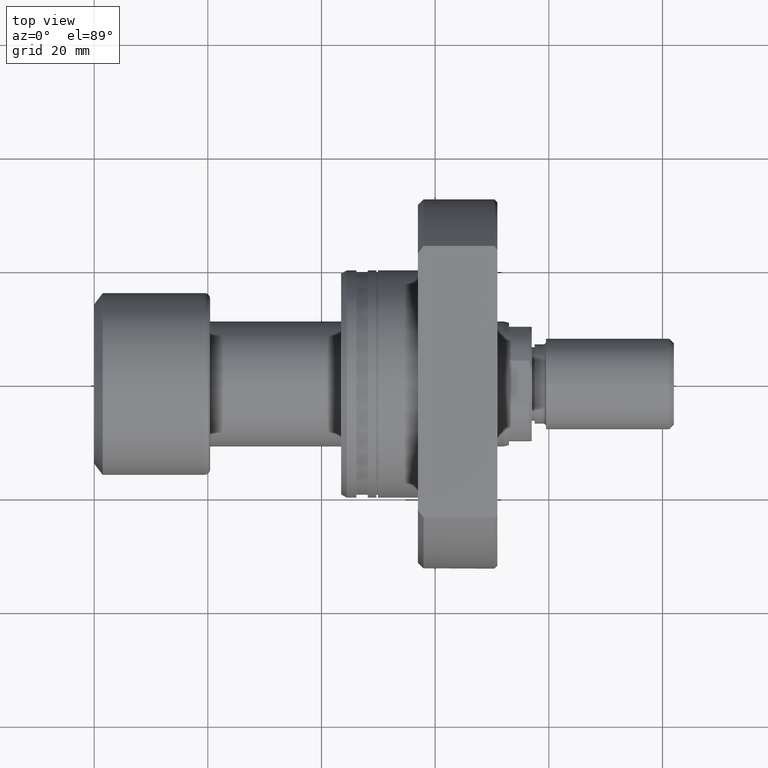
[diagram: clean part render]
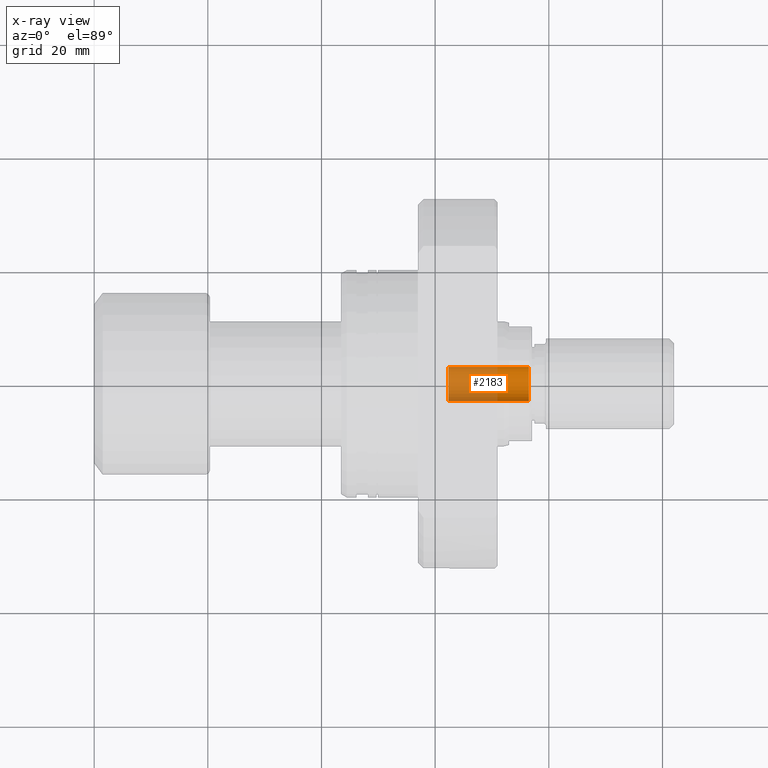
[diagram: x-ray — body ghosted, one internal face saturated and labeled with its STEP entity id]
A machine part, top view, then the same camera in x-ray: the body is ghosted and one INTERNAL B-rep face — a face not visible from any outside direction — is saturated and labeled: STEP entity #2183.
In plain terms, the highlighted cylindrical surface (edge-blend (fillet) strip) has radius 3 mm, axis along (1, -0, 0).
Its self-contained STEP definition (entity closure, byte-faithful):
#77 = VERTEX_POINT ( 'NONE', #1816 ) ;
#519 = DIRECTION ( 'NONE',  ( 1.619075244244818427E-14, 1.000000000000000000, 0.000000000000000000 ) ) ;
#537 = CARTESIAN_POINT ( 'NONE',  ( 62.30000000000004690, 2.999999999999340972, 0.000000000000000000 ) ) ;
#569 = CIRCLE ( 'NONE', #2653, 3.000000000000373479 ) ;
#786 = CARTESIAN_POINT ( 'NONE',  ( 62.30000000000004690, 2.999999999999340972, 0.000000000000000000 ) ) ;
#834 = DIRECTION ( 'NONE',  ( 1.000000000000000000, -1.657264799492230625E-14, -0.000000000000000000 ) ) ;
#877 = CARTESIAN_POINT ( 'NONE',  ( 62.29999999999995453, -3.000000000001405986, 3.673940397442516914E-16 ) ) ;
#989 = AXIS2_PLACEMENT_3D ( 'NONE', #3266, #1554, #2201 ) ;
#1002 = EDGE_CURVE ( 'NONE', #3153, #1107, #2890, .T. ) ;
#1068 = CARTESIAN_POINT ( 'NONE',  ( 62.29999999999995453, -3.000000000001405986, 3.673940397442516914E-16 ) ) ;
#1077 = CYLINDRICAL_SURFACE ( 'NONE', #3476, 3.000000000000373479 ) ;
#1107 = VERTEX_POINT ( 'NONE', #2123 ) ;
#1137 = LINE ( 'NONE', #537, #2305 ) ;
#1206 = CARTESIAN_POINT ( 'NONE',  ( 62.30000000000000426, -1.032475970083659863E-12, 0.000000000000000000 ) ) ;
#1328 = ORIENTED_EDGE ( 'NONE', *, *, #3091, .T. ) ;
#1519 = DIRECTION ( 'NONE',  ( 1.000000000000000000, -1.657264799492230625E-14, 0.000000000000000000 ) ) ;
#1554 = DIRECTION ( 'NONE',  ( 1.000000000000000000, -1.657264799492235042E-14, 0.000000000000000000 ) ) ;
#1816 = CARTESIAN_POINT ( 'NONE',  ( 76.50000000000014211, 2.999999999999105604, 0.000000000000000000 ) ) ;
#1878 = ORIENTED_EDGE ( 'NONE', *, *, #1002, .T. ) ;
#1914 = CARTESIAN_POINT ( 'NONE',  ( 62.30000000000000426, -1.032475970083659863E-12, 0.000000000000000000 ) ) ;
#2123 = CARTESIAN_POINT ( 'NONE',  ( 76.50000000000002842, -3.000000000001640466, 3.673940397442660388E-16 ) ) ;
#2174 = CIRCLE ( 'NONE', #989, 3.000000000000373479 ) ;
#2183 = ADVANCED_FACE ( 'NONE', ( #3370 ), #1077, .F. ) ;
#2201 = DIRECTION ( 'NONE',  ( -1.850371707708363781E-14, -1.000000000000000000, 0.000000000000000000 ) ) ;
#2272 = DIRECTION ( 'NONE',  ( 1.000000000000000000, -1.657264799492230625E-14, -0.000000000000000000 ) ) ;
#2305 = VECTOR ( 'NONE', #2272, 1000.000000000000000 ) ;
#2317 = DIRECTION ( 'NONE',  ( 1.000000000000000000, -1.657264799492230625E-14, -0.000000000000000000 ) ) ;
#2521 = VECTOR ( 'NONE', #2317, 1000.000000000000000 ) ;
#2650 = DIRECTION ( 'NONE',  ( 1.619075244244818427E-14, 1.000000000000000000, 0.000000000000000000 ) ) ;
#2653 = AXIS2_PLACEMENT_3D ( 'NONE', #1206, #1519, #2650 ) ;
#2890 = LINE ( 'NONE', #877, #2521 ) ;
#2903 = EDGE_LOOP ( 'NONE', ( #3155, #1878, #1328, #3089 ) ) ;
#3089 = ORIENTED_EDGE ( 'NONE', *, *, #3664, .F. ) ;
#3091 = EDGE_CURVE ( 'NONE', #1107, #77, #2174, .T. ) ;
#3153 = VERTEX_POINT ( 'NONE', #1068 ) ;
#3155 = ORIENTED_EDGE ( 'NONE', *, *, #3457, .F. ) ;
#3266 = CARTESIAN_POINT ( 'NONE',  ( 76.50000000000008527, -1.267807571611558059E-12, 0.000000000000000000 ) ) ;
#3267 = VERTEX_POINT ( 'NONE', #786 ) ;
#3370 = FACE_OUTER_BOUND ( 'NONE', #2903, .T. ) ;
#3457 = EDGE_CURVE ( 'NONE', #3153, #3267, #569, .T. ) ;
#3476 = AXIS2_PLACEMENT_3D ( 'NONE', #1914, #834, #519 ) ;
#3664 = EDGE_CURVE ( 'NONE', #3267, #77, #1137, .T. ) ;